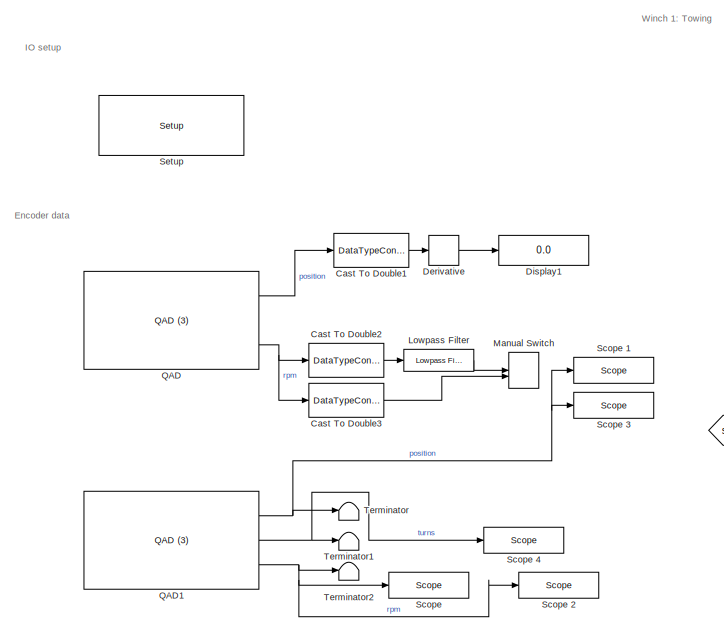
[diagram: root canvas - part 1/2, left side, full height]
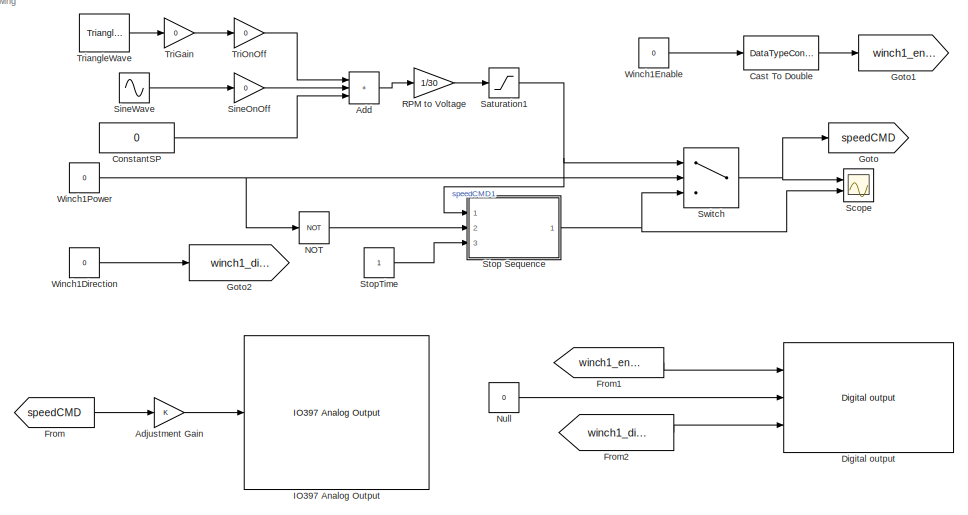
[diagram: root canvas - part 2/2, right side, full height]
MODEL slx_6098eb12bde4
KIND model
CONFIG AbsTol = auto
CONFIG EnableMultiTasking = on
CONFIG FixedStep = auto
CONFIG MaxStep = auto
CONFIG MinStep = auto
CONFIG RelTol = 1e-3
CONFIG SampleTimeConstraint = Unconstrained
CONFIG Solver = FixedStepAuto
CONFIG SolverName = FixedStepAuto
CONFIG StartTime = 0.0
CONFIG StopTime = inf
BLOCK [Sum] Add
  IconShape = rectangular
  Inputs = +++
  Ports = [3, 1]
BLOCK [Gain] Adjustment Gain
BLOCK [DataTypeConversion] Cast To Double
  OutDataTypeStr = double
  RndMeth = Floor
  SaturateOnIntegerOverflow = off
BLOCK [DataTypeConversion] Cast To Double1
  OutDataTypeStr = double
  RndMeth = Floor
  SaturateOnIntegerOverflow = off
BLOCK [DataTypeConversion] Cast To Double2
  OutDataTypeStr = double
  RndMeth = Floor
  SaturateOnIntegerOverflow = off
BLOCK [DataTypeConversion] Cast To Double3
  OutDataTypeStr = double
  RndMeth = Floor
  SaturateOnIntegerOverflow = off
BLOCK [Constant] ConstantSP
  Value = 0
BLOCK [Derivative] Derivative
BLOCK [Reference] Digital output  REF=speedgoatlib_fpga_dio/Digital output
  Ports = [3]
  SourceBlock = speedgoatlib_fpga_dio/Digital output
  SourceProductName = Simulink Real-Time: Speedgoat I/O Driver Library
  SourceType = do_fpga_a2
BLOCK [Display] Display1
  Decimation = 1
  Ports = [1]
BLOCK [From] From
  GotoTag = speedCMD
BLOCK [From] From1
  GotoTag = winch1_enable
BLOCK [From] From2
  GotoTag = winch1_direction
BLOCK [Goto] Goto
  GotoTag = speedCMD
BLOCK [Goto] Goto1
  GotoTag = winch1_enable
BLOCK [Goto] Goto2
  GotoTag = winch1_direction
BLOCK [Reference] IO397 Analog Output  REF=speedgoatlib_fpga_analog_io/IO397 Analog Output
  Ports = [1]
  SourceBlock = speedgoatlib_fpga_analog_io/IO397 Analog Output
  SourceProductName = Simulink Real-Time: Speedgoat I/O Driver Library
  SourceType = da_IO397
BLOCK [Reference] Lowpass Filter  REF=dspfdesign/Lowpass Filter
  Ports = [1, 1]
  SourceBlock = dspfdesign/Lowpass Filter
  SourceProductBaseCode = DS
  SourceType = dsp.LowpassFilter
BLOCK [ManualSwitch] Manual Switch
  CurrentSetting = 0
BLOCK [Logic] NOT
  AllPortsSameDT = off
  IconShape = distinctive
  Operator = NOT
  OutDataTypeStr = boolean
  Ports = [1, 1]
BLOCK [Constant] Null
  Value = 0
BLOCK [Reference] QAD  REF=speedgoatlib_fpga_quadrature/QAD (3)
  Ports = [0, 3]
  SourceBlock = speedgoatlib_fpga_quadrature/QAD (3)
  SourceProductName = Simulink Real-Time: Speedgoat I/O Driver Library
  SourceType = qad_fpga_a3
BLOCK [Reference] QAD1  REF=speedgoatlib_fpga_quadrature/QAD (3)
  Ports = [0, 3]
  SourceBlock = speedgoatlib_fpga_quadrature/QAD (3)
  SourceProductName = Simulink Real-Time: Speedgoat I/O Driver Library
  SourceType = qad_fpga_a3
BLOCK [Gain] RPM to Voltage
  Gain = 1/30
BLOCK [Saturate] Saturation1
  LowerLimit = 0
  UpperLimit = 5
BLOCK [Scope] Scope
  Floating = off
  NumInputPorts = 2
  Ports = [2]
  ScopeSpecificationString = Simulink.scopes.TimeScopeBlockCfg('CurrentConfiguration', extmgr.ConfigurationSet(extmgr.Configuration('Core','General UI',true),extmgr.Configuration('Core','Source UI',true),extmgr.Configuration('Sources','WiredSimulink',true),extmgr.Configuration('Visuals','Time Domain',true,'SerializedDisplays',{struct('MinYLimReal','-0.625','MaxYLimReal','5.625','YLabelReal','','MinYLimMag','0.00000','MaxYLimM...<+1408ch>
BLOCK [Reference] Scope   REF=slrtlib/Displays and
Logging/Scope 
  Ports = [1]
  SourceBlock = slrtlib/Displays and\nLogging/Scope
  SourceProductBaseCode = XP
  SourceType = xpcscopeblock
BLOCK [Reference] Scope 1  REF=slrtlib/Displays and
Logging/Scope 
  Ports = [1]
  SourceBlock = slrtlib/Displays and\nLogging/Scope
  SourceProductBaseCode = XP
  SourceType = xpcscopeblock
BLOCK [Reference] Scope 2  REF=slrtlib/Displays and
Logging/Scope 
  Ports = [1]
  SourceBlock = slrtlib/Displays and\nLogging/Scope
  SourceProductBaseCode = XP
  SourceType = xpcscopeblock
BLOCK [Reference] Scope 3  REF=slrtlib/Displays and
Logging/Scope 
  Ports = [1]
  SourceBlock = slrtlib/Displays and\nLogging/Scope
  SourceProductBaseCode = XP
  SourceType = xpcscopeblock
BLOCK [Reference] Scope 4  REF=slrtlib/Displays and
Logging/Scope 
  Ports = [1]
  SourceBlock = slrtlib/Displays and\nLogging/Scope
  SourceProductBaseCode = XP
  SourceType = xpcscopeblock
BLOCK [Reference] Setup  REF=speedgoatlib_fpga/Setup/Setup
  Ports = []
  SourceBlock = speedgoatlib_fpga/Setup/Setup
  SourceProductName = Simulink Real-Time: Speedgoat Library
  SourceType = setup_fpga_3
BLOCK [Gain] SineOnOff
  Gain = 0
BLOCK [Sin] SineWave
  Amplitude = 0
  Frequency = 6.2832
  Ports = [0, 1]
  SampleTime = 0
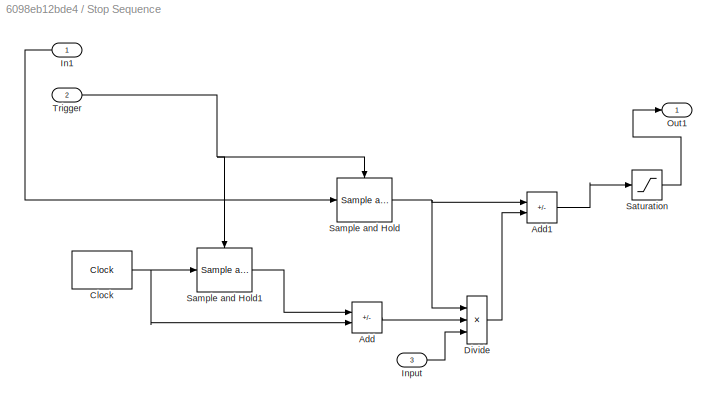
BLOCK [SubSystem] Stop Sequence 
  Ports = [3, 1]
  RequestExecContextInheritance = off
  TreatAsAtomicUnit = on
BLOCK [Sum] Stop Sequence /Add
  IconShape = rectangular
  Inputs = -+
  Ports = [2, 1]
BLOCK [Sum] Stop Sequence /Add1
  IconShape = rectangular
  Inputs = +-
  Ports = [2, 1]
BLOCK [Clock] Stop Sequence /Clock
  DisplayTime = on
BLOCK [Product] Stop Sequence /Divide
  Inputs = **/
  Ports = [3, 1]
BLOCK [Inport] Stop Sequence /In1
BLOCK [Inport] Stop Sequence /Input
  Port = 3
BLOCK [Outport] Stop Sequence /Out1
BLOCK [Reference] Stop Sequence /Sample and Hold  REF=dspsigops/Sample
and Hold
  Ports = [1, 1, 0, 1]
  SourceBlock = dspsigops/Sample\nand Hold
  SourceProductBaseCode = DS
  SourceType = Sample and Hold
BLOCK [Reference] Stop Sequence /Sample and Hold1  REF=dspsigops/Sample
and Hold
  Ports = [1, 1, 0, 1]
  SourceBlock = dspsigops/Sample\nand Hold
  SourceProductBaseCode = DS
  SourceType = Sample and Hold
BLOCK [Saturate] Stop Sequence /Saturation
  LowerLimit = 0
  UpperLimit = 5
BLOCK [Inport] Stop Sequence /Trigger
  Port = 2
BLOCK [Constant] StopTime
BLOCK [Switch] Switch
  Criteria = u2 > Threshold
  InputSameDT = off
  SaturateOnIntegerOverflow = off
BLOCK [Terminator] Terminator
BLOCK [Terminator] Terminator1
BLOCK [Terminator] Terminator2
BLOCK [Gain] TriGain
  Gain = 0
BLOCK [Gain] TriOnOff
  Gain = 0
BLOCK [Reference] TriangleWave  REF=powerlib_meascontrol/Pulse & Signal
Generators/Triangle
Generator
  Ports = [0, 1]
  SourceBlock = powerlib_meascontrol/Pulse & Signal\nGenerators/Triangle\nGenerator
  SourceProductBaseCode = PS
  SourceType = Triangle Generator
BLOCK [Constant] Winch1Direction
  Value = 0
BLOCK [Constant] Winch1Enable
  Value = 0
BLOCK [Constant] Winch1Power
  Value = 0
ANNOTATION (root): Encoder data
ANNOTATION (root): IO setup
ANNOTATION (root): Winch 1: Towing
LINE Add:1 -> RPM to Voltage:1
LINE Adjustment Gain:1 -> IO397 Analog Output:1
LINE Cast To Double1:1 -> Derivative:1
LINE Cast To Double2:1 -> Lowpass Filter:1
LINE Cast To Double3:1 -> Manual Switch:2
LINE Cast To Double:1 -> Goto1:1
LINE ConstantSP:1 -> Add:3
LINE Derivative:1 -> Display1:1
LINE From1:1 -> Digital output:1
LINE From2:1 -> Digital output:3
LINE From:1 -> Adjustment Gain:1
LINE Lowpass Filter:1 -> Manual Switch:1
LINE NOT:1 -> Stop Sequence :2
LINE Null:1 -> Digital output:2
NET QAD1:1 -> Scope 1:1, Scope 3:1, Terminator:1
NET QAD1:2 -> Scope 4:1, Terminator1:1
NET QAD1:3 -> Scope 2:1, Scope :1, Terminator2:1
LINE QAD:1 -> Cast To Double1:1
NET QAD:3 -> Cast To Double2:1, Cast To Double3:1
LINE RPM to Voltage:1 -> Saturation1:1
NET Saturation1:1 -> Stop Sequence :1, Switch:1
LINE SineOnOff:1 -> Add:2
LINE SineWave:1 -> SineOnOff:1
LINE Stop Sequence /Add1:1 -> Stop Sequence /Saturation:1
LINE Stop Sequence /Add:1 -> Stop Sequence /Divide:2
NET Stop Sequence /Clock:1 -> Stop Sequence /Add:2, Stop Sequence /Sample and Hold1:1
LINE Stop Sequence /Divide:1 -> Stop Sequence /Add1:2
LINE Stop Sequence /In1:1 -> Stop Sequence /Sample and Hold:1
LINE Stop Sequence /Input:1 -> Stop Sequence /Divide:3
LINE Stop Sequence /Sample and Hold1:1 -> Stop Sequence /Add:1
NET Stop Sequence /Sample and Hold:1 -> Stop Sequence /Add1:1, Stop Sequence /Divide:1
LINE Stop Sequence /Saturation:1 -> Stop Sequence /Out1:1
NET Stop Sequence /Trigger:1 -> Stop Sequence /Sample and Hold1:trigger, Stop Sequence /Sample and Hold:trigger
NET Stop Sequence :1 -> Scope:2, Switch:3
LINE StopTime:1 -> Stop Sequence :3
NET Switch:1 -> Goto:1, Scope:1
LINE TriGain:1 -> TriOnOff:1
LINE TriOnOff:1 -> Add:1
LINE TriangleWave:1 -> TriGain:1
LINE Winch1Direction:1 -> Goto2:1
LINE Winch1Enable:1 -> Cast To Double:1
NET Winch1Power:1 -> NOT:1, Switch:2
note: NET lines group one-source signal fan-out (src -> all destinations, sorted); 1:1 wires keep LINE
